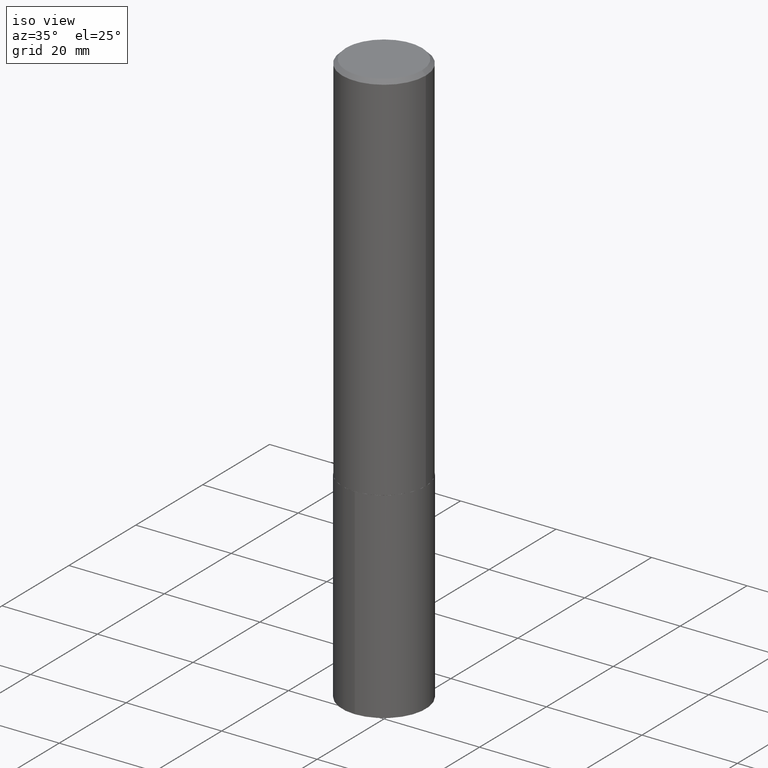
[diagram: clean part render]
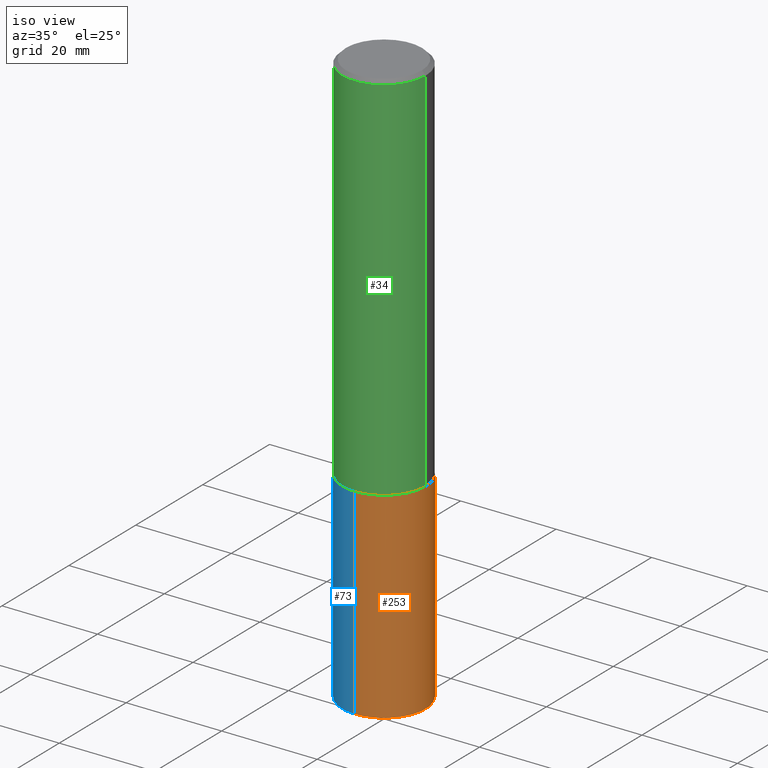
[diagram: same view with three faces highlighted in distinct colors, each labeled with its STEP entity id]
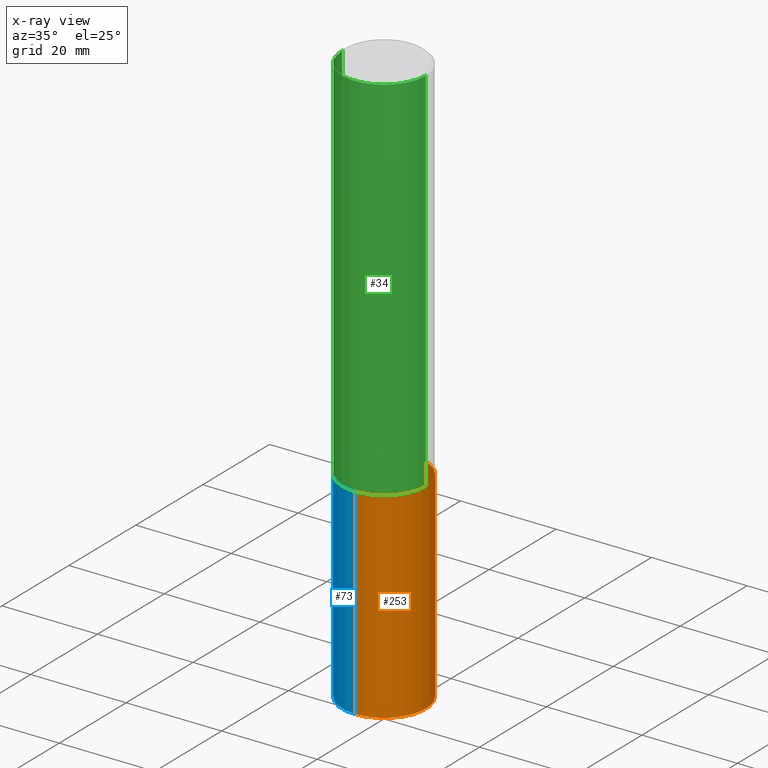
[diagram: x-ray of the same camera — body ghosted, the three highlighted faces saturated]
A machine part, iso view with three faces highlighted in distinct colors.
The next image is the same camera in x-ray (body ghosted, the three faces saturated) — at least one of them is partly hidden behind the body in this view.
Their STEP definitions:

[orange] entity #253 — the highlighted cylindrical surface (partial cylindrical patch) has radius 8.7503 mm, axis along (-0, 0, 1).
#2 = VERTEX_POINT ( 'NONE', #313 ) ;
#38 = DIRECTION ( 'NONE',  ( -6.982962677686265922E-15, -1.000000000000000000, 3.171957031830784954E-15 ) ) ;
#47 = VECTOR ( 'NONE', #151, 39.37007874015748143 ) ;
#50 = ORIENTED_EDGE ( 'NONE', *, *, #279, .T. ) ;
#51 = CARTESIAN_POINT ( 'NONE',  ( 2.447819724693660122E-15, 0.3444999999999832641, -4.750191503207480181 ) ) ;
#69 = FACE_OUTER_BOUND ( 'NONE', #198, .T. ) ;
#80 = DIRECTION ( 'NONE',  ( -2.444255737030311001E-29, 3.493218522916463990E-15, 1.000000000000000000 ) ) ;
#83 = EDGE_CURVE ( 'NONE', #339, #149, #241, .T. ) ;
#91 = ORIENTED_EDGE ( 'NONE', *, *, #286, .F. ) ;
#98 = EDGE_CURVE ( 'NONE', #339, #2, #374, .T. ) ;
#105 = CARTESIAN_POINT ( 'NONE',  ( 1.161443194523742317E-28, -1.658808800530777061E-14, -4.750191503207479293 ) ) ;
#117 = ORIENTED_EDGE ( 'NONE', *, *, #83, .T. ) ;
#138 = CARTESIAN_POINT ( 'NONE',  ( -2.405630642462801547E-15, -0.3445000000000165152, -4.750191503207478405 ) ) ;
#149 = VERTEX_POINT ( 'NONE', #51 ) ;
#151 = DIRECTION ( 'NONE',  ( -2.444255737030311001E-29, 3.493218522916464385E-15, 1.000000000000000000 ) ) ;
#154 = CARTESIAN_POINT ( 'NONE',  ( 7.557965892395783042E-29, -1.079077222582862542E-14, -3.090600000000000236 ) ) ;
#167 = AXIS2_PLACEMENT_3D ( 'NONE', #154, #180, #38 ) ;
#180 = DIRECTION ( 'NONE',  ( -2.444255737030311001E-29, 3.493218522916463990E-15, 1.000000000000000000 ) ) ;
#198 = EDGE_LOOP ( 'NONE', ( #117, #50, #91, #378 ) ) ;
#212 = LINE ( 'NONE', #365, #47 ) ;
#216 = CARTESIAN_POINT ( 'NONE',  ( 7.557965892395783042E-29, -1.079077222582862542E-14, -3.090600000000000236 ) ) ;
#219 = VERTEX_POINT ( 'NONE', #234 ) ;
#221 = VECTOR ( 'NONE', #320, 39.37007874015748143 ) ;
#227 = CARTESIAN_POINT ( 'NONE',  ( -2.405630642462842567E-15, -0.3445000000000107421, -3.090599999999998904 ) ) ;
#234 = CARTESIAN_POINT ( 'NONE',  ( 2.447819724693660122E-15, 0.3444999999999890927, -3.090600000000001124 ) ) ;
#241 = CIRCLE ( 'NONE', #302, 0.3444999999999999729 ) ;
#253 = ADVANCED_FACE ( 'NONE', ( #69 ), #367, .T. ) ;
#276 = AXIS2_PLACEMENT_3D ( 'NONE', #216, #309, #277 ) ;
#277 = DIRECTION ( 'NONE',  ( -6.982962677686265922E-15, -1.000000000000000000, 3.171957031830784954E-15 ) ) ;
#279 = EDGE_CURVE ( 'NONE', #149, #219, #212, .T. ) ;
#286 = EDGE_CURVE ( 'NONE', #2, #219, #319, .T. ) ;
#302 = AXIS2_PLACEMENT_3D ( 'NONE', #105, #80, #341 ) ;
#309 = DIRECTION ( 'NONE',  ( -2.444255737030311001E-29, 3.493218522916463990E-15, 1.000000000000000000 ) ) ;
#313 = CARTESIAN_POINT ( 'NONE',  ( -2.405630642462842567E-15, -0.3445000000000107421, -3.090599999999998904 ) ) ;
#319 = CIRCLE ( 'NONE', #276, 0.3444999999999999729 ) ;
#320 = DIRECTION ( 'NONE',  ( -2.444255737030311001E-29, 3.493218522916464385E-15, 1.000000000000000000 ) ) ;
#339 = VERTEX_POINT ( 'NONE', #138 ) ;
#341 = DIRECTION ( 'NONE',  ( -6.982962677686265922E-15, -1.000000000000000000, 3.171957031830784954E-15 ) ) ;
#365 = CARTESIAN_POINT ( 'NONE',  ( 2.447819724693620284E-15, 0.3444999999999892037, -3.090600000000001124 ) ) ;
#367 = CYLINDRICAL_SURFACE ( 'NONE', #167, 0.3444999999999999729 ) ;
#374 = LINE ( 'NONE', #227, #221 ) ;
#378 = ORIENTED_EDGE ( 'NONE', *, *, #98, .F. ) ;

[blue] entity #73 — the highlighted cylindrical surface (partial cylindrical patch) has radius 8.7503 mm, axis along (-0, 0, 1).
#2 = VERTEX_POINT ( 'NONE', #313 ) ;
#18 = ORIENTED_EDGE ( 'NONE', *, *, #98, .T. ) ;
#19 = DIRECTION ( 'NONE',  ( -6.982962677686265922E-15, -1.000000000000000000, 3.171957031830784954E-15 ) ) ;
#33 = EDGE_LOOP ( 'NONE', ( #211, #110, #18, #232 ) ) ;
#37 = FACE_OUTER_BOUND ( 'NONE', #33, .T. ) ;
#47 = VECTOR ( 'NONE', #151, 39.37007874015748143 ) ;
#51 = CARTESIAN_POINT ( 'NONE',  ( 2.447819724693660122E-15, 0.3444999999999832641, -4.750191503207480181 ) ) ;
#73 = ADVANCED_FACE ( 'NONE', ( #37 ), #274, .T. ) ;
#98 = EDGE_CURVE ( 'NONE', #339, #2, #374, .T. ) ;
#110 = ORIENTED_EDGE ( 'NONE', *, *, #192, .T. ) ;
#129 = CARTESIAN_POINT ( 'NONE',  ( 7.557965892395783042E-29, -1.079077222582862542E-14, -3.090600000000000236 ) ) ;
#130 = EDGE_CURVE ( 'NONE', #219, #2, #338, .T. ) ;
#135 = DIRECTION ( 'NONE',  ( -6.982962677686265922E-15, -1.000000000000000000, 3.171957031830784954E-15 ) ) ;
#138 = CARTESIAN_POINT ( 'NONE',  ( -2.405630642462801547E-15, -0.3445000000000165152, -4.750191503207478405 ) ) ;
#149 = VERTEX_POINT ( 'NONE', #51 ) ;
#151 = DIRECTION ( 'NONE',  ( -2.444255737030311001E-29, 3.493218522916464385E-15, 1.000000000000000000 ) ) ;
#162 = AXIS2_PLACEMENT_3D ( 'NONE', #289, #340, #19 ) ;
#192 = EDGE_CURVE ( 'NONE', #149, #339, #344, .T. ) ;
#194 = DIRECTION ( 'NONE',  ( -2.444255737030311001E-29, 3.493218522916463990E-15, 1.000000000000000000 ) ) ;
#211 = ORIENTED_EDGE ( 'NONE', *, *, #279, .F. ) ;
#212 = LINE ( 'NONE', #365, #47 ) ;
#219 = VERTEX_POINT ( 'NONE', #234 ) ;
#221 = VECTOR ( 'NONE', #320, 39.37007874015748143 ) ;
#227 = CARTESIAN_POINT ( 'NONE',  ( -2.405630642462842567E-15, -0.3445000000000107421, -3.090599999999998904 ) ) ;
#232 = ORIENTED_EDGE ( 'NONE', *, *, #130, .F. ) ;
#234 = CARTESIAN_POINT ( 'NONE',  ( 2.447819724693660122E-15, 0.3444999999999890927, -3.090600000000001124 ) ) ;
#249 = DIRECTION ( 'NONE',  ( -2.444255737030311001E-29, 3.493218522916463990E-15, 1.000000000000000000 ) ) ;
#274 = CYLINDRICAL_SURFACE ( 'NONE', #380, 0.3444999999999999729 ) ;
#279 = EDGE_CURVE ( 'NONE', #149, #219, #212, .T. ) ;
#284 = DIRECTION ( 'NONE',  ( -6.982962677686265922E-15, -1.000000000000000000, 3.171957031830784954E-15 ) ) ;
#289 = CARTESIAN_POINT ( 'NONE',  ( 1.161443194523742317E-28, -1.658808800530777061E-14, -4.750191503207479293 ) ) ;
#313 = CARTESIAN_POINT ( 'NONE',  ( -2.405630642462842567E-15, -0.3445000000000107421, -3.090599999999998904 ) ) ;
#320 = DIRECTION ( 'NONE',  ( -2.444255737030311001E-29, 3.493218522916464385E-15, 1.000000000000000000 ) ) ;
#338 = CIRCLE ( 'NONE', #364, 0.3444999999999999729 ) ;
#339 = VERTEX_POINT ( 'NONE', #138 ) ;
#340 = DIRECTION ( 'NONE',  ( -2.444255737030311001E-29, 3.493218522916463990E-15, 1.000000000000000000 ) ) ;
#342 = CARTESIAN_POINT ( 'NONE',  ( 7.557965892395783042E-29, -1.079077222582862542E-14, -3.090600000000000236 ) ) ;
#344 = CIRCLE ( 'NONE', #162, 0.3444999999999999729 ) ;
#364 = AXIS2_PLACEMENT_3D ( 'NONE', #342, #194, #284 ) ;
#365 = CARTESIAN_POINT ( 'NONE',  ( 2.447819724693620284E-15, 0.3444999999999892037, -3.090600000000001124 ) ) ;
#374 = LINE ( 'NONE', #227, #221 ) ;
#380 = AXIS2_PLACEMENT_3D ( 'NONE', #129, #249, #135 ) ;

[green] entity #34 — the highlighted cylindrical surface (partial cylindrical patch) has radius 8.7503 mm, axis along (-0, 0, 1).
#1 = DIRECTION ( 'NONE',  ( -2.445468806185136597E-29, 3.491481338843145583E-15, 1.000000000000000000 ) ) ;
#3 = DIRECTION ( 'NONE',  ( -2.445468806185136597E-29, 3.491481338843145583E-15, 1.000000000000000000 ) ) ;
#12 = AXIS2_PLACEMENT_3D ( 'NONE', #156, #97, #278 ) ;
#27 = EDGE_CURVE ( 'NONE', #349, #293, #126, .T. ) ;
#34 = ADVANCED_FACE ( 'NONE', ( #370 ), #363, .T. ) ;
#62 = CIRCLE ( 'NONE', #96, 0.3445000000000000284 ) ;
#86 = VERTEX_POINT ( 'NONE', #287 ) ;
#88 = VECTOR ( 'NONE', #164, 39.37007874015748143 ) ;
#96 = AXIS2_PLACEMENT_3D ( 'NONE', #150, #3, #311 ) ;
#97 = DIRECTION ( 'NONE',  ( -2.445468806185136597E-29, 3.491481338843145583E-15, 1.000000000000000000 ) ) ;
#107 = CARTESIAN_POINT ( 'NONE',  ( 0.3445000000000000839, -2.405630642462919876E-15, 1.679842899261700335E-29 ) ) ;
#119 = ORIENTED_EDGE ( 'NONE', *, *, #27, .F. ) ;
#121 = CARTESIAN_POINT ( 'NONE',  ( -0.3445000000000000284, -3.001247913805480378E-15, -0.03125000000000018735 ) ) ;
#126 = LINE ( 'NONE', #132, #275 ) ;
#127 = EDGE_LOOP ( 'NONE', ( #119, #186, #196, #345 ) ) ;
#131 = VERTEX_POINT ( 'NONE', #229 ) ;
#132 = CARTESIAN_POINT ( 'NONE',  ( -0.3445000000000000839, 2.447819724693545737E-15, -1.694573138592815289E-29 ) ) ;
#142 = CIRCLE ( 'NONE', #193, 0.3445000000000002505 ) ;
#150 = CARTESIAN_POINT ( 'NONE',  ( 7.642090019328597407E-31, -1.091087918388489527E-16, -0.03125000000000018735 ) ) ;
#156 = CARTESIAN_POINT ( 'NONE',  ( 0.000000000000000000, 0.000000000000000000, 0.000000000000000000 ) ) ;
#164 = DIRECTION ( 'NONE',  ( -2.445468806185136877E-29, 3.491481338843145188E-15, 1.000000000000000000 ) ) ;
#181 = DIRECTION ( 'NONE',  ( 1.000000000000000000, -6.982962677686264344E-15, 0.000000000000000000 ) ) ;
#186 = ORIENTED_EDGE ( 'NONE', *, *, #322, .T. ) ;
#193 = AXIS2_PLACEMENT_3D ( 'NONE', #272, #1, #181 ) ;
#196 = ORIENTED_EDGE ( 'NONE', *, *, #210, .T. ) ;
#210 = EDGE_CURVE ( 'NONE', #86, #131, #373, .T. ) ;
#223 = DIRECTION ( 'NONE',  ( -2.445468806185136877E-29, 3.491481338843145188E-15, 1.000000000000000000 ) ) ;
#229 = CARTESIAN_POINT ( 'NONE',  ( 0.3445000000000000284, -2.514739434301768188E-15, -0.03125000000000018735 ) ) ;
#272 = CARTESIAN_POINT ( 'NONE',  ( 7.556743157992690241E-29, -1.078902648515920471E-14, -3.090100000000000069 ) ) ;
#275 = VECTOR ( 'NONE', #223, 39.37007874015748143 ) ;
#278 = DIRECTION ( 'NONE',  ( 1.000000000000000000, -6.982962677686268288E-15, 4.876176775795935793E-29 ) ) ;
#285 = EDGE_CURVE ( 'NONE', #293, #131, #62, .T. ) ;
#287 = CARTESIAN_POINT ( 'NONE',  ( 0.3445000000000002505, -1.319465712762212498E-14, -3.090100000000000069 ) ) ;
#293 = VERTEX_POINT ( 'NONE', #121 ) ;
#311 = DIRECTION ( 'NONE',  ( 1.000000000000000000, -6.982962677686267499E-15, 0.000000000000000000 ) ) ;
#316 = CARTESIAN_POINT ( 'NONE',  ( -0.3445000000000002505, -8.341206760465657787E-15, -3.090100000000000069 ) ) ;
#322 = EDGE_CURVE ( 'NONE', #349, #86, #142, .T. ) ;
#345 = ORIENTED_EDGE ( 'NONE', *, *, #285, .F. ) ;
#349 = VERTEX_POINT ( 'NONE', #316 ) ;
#363 = CYLINDRICAL_SURFACE ( 'NONE', #12, 0.3445000000000000839 ) ;
#370 = FACE_OUTER_BOUND ( 'NONE', #127, .T. ) ;
#373 = LINE ( 'NONE', #107, #88 ) ;